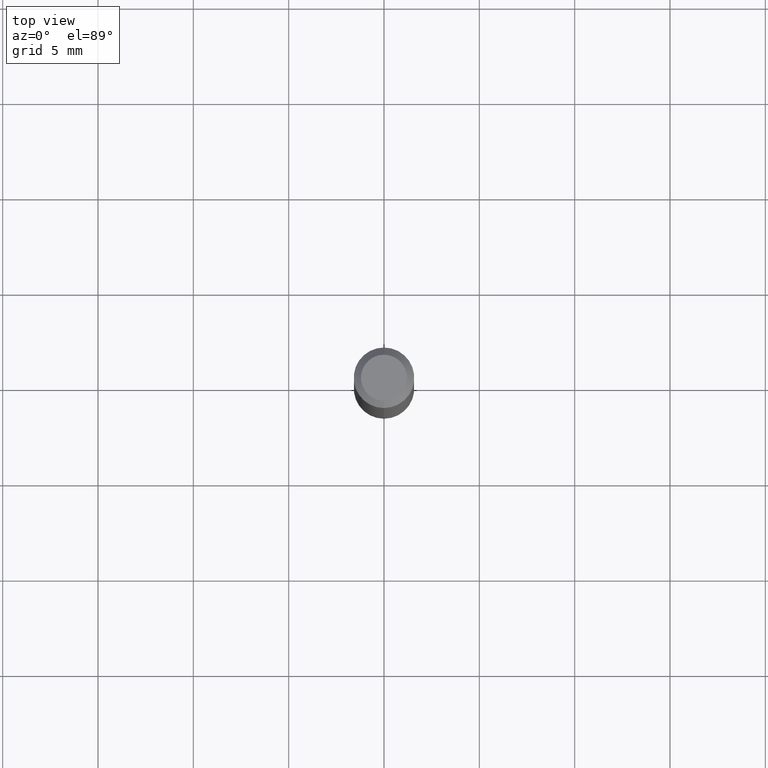
[diagram: clean part render]
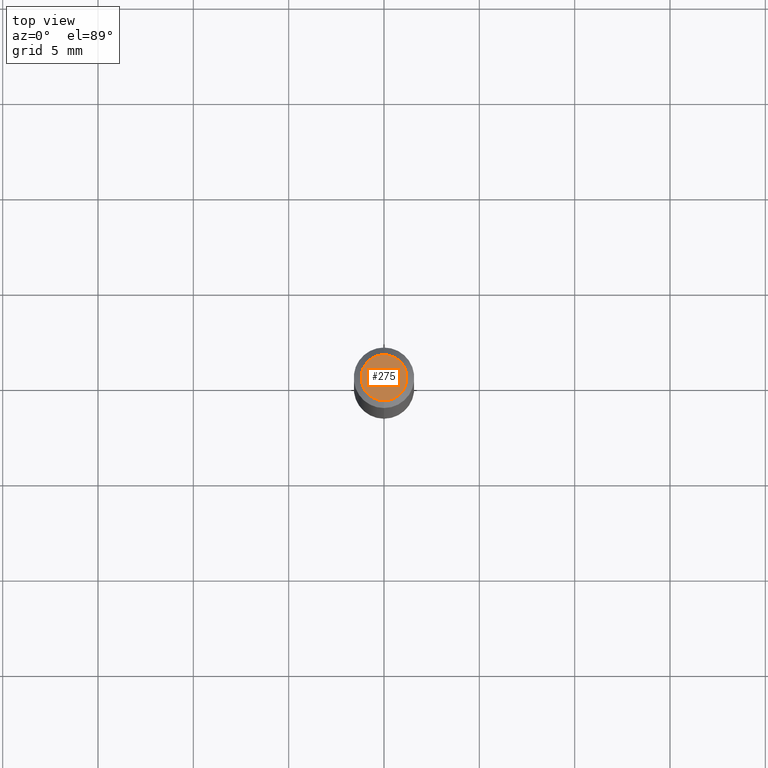
[diagram: same view with one face highlighted and labeled with its STEP entity id]
A machine part, top view. The second image highlights one B-rep face of the part: STEP entity #275.
In plain terms, the highlighted planar face has unit normal (0, -0, -1).
Its self-contained STEP definition (entity closure, byte-faithful):
#9 = EDGE_CURVE ( 'NONE', #283, #173, #240, .T. ) ;
#33 = PLANE ( 'NONE',  #477 ) ;
#49 = DIRECTION ( 'NONE',  ( -6.982962677686266711E-15, -1.000000000000000000, 3.491490567174196263E-15 ) ) ;
#91 = CARTESIAN_POINT ( 'NONE',  ( 8.024699379022379345E-45, -1.145720442104045864E-30, -3.281465093664347996E-16 ) ) ;
#114 = FACE_OUTER_BOUND ( 'NONE', #332, .T. ) ;
#151 = DIRECTION ( 'NONE',  ( 2.445462362076005572E-29, -3.491490567174196658E-15, -1.000000000000000000 ) ) ;
#173 = VERTEX_POINT ( 'NONE', #430 ) ;
#182 = DIRECTION ( 'NONE',  ( -6.982962677686266711E-15, -1.000000000000000000, 3.491490567174196263E-15 ) ) ;
#195 = DIRECTION ( 'NONE',  ( -2.445462362076006413E-29, 3.491490567174196263E-15, 1.000000000000000000 ) ) ;
#238 = AXIS2_PLACEMENT_3D ( 'NONE', #263, #497, #182 ) ;
#240 = CIRCLE ( 'NONE', #301, 0.04749999999999999362 ) ;
#263 = CARTESIAN_POINT ( 'NONE',  ( 8.024699379022379345E-45, -1.145720442104045864E-30, -3.281465093664347996E-16 ) ) ;
#275 = ADVANCED_FACE ( 'NONE', ( #114 ), #33, .F. ) ;
#283 = VERTEX_POINT ( 'NONE', #352 ) ;
#285 = DIRECTION ( 'NONE',  ( 6.982962677686265922E-15, 1.000000000000000000, -3.491490567174196658E-15 ) ) ;
#292 = ORIENTED_EDGE ( 'NONE', *, *, #9, .T. ) ;
#301 = AXIS2_PLACEMENT_3D ( 'NONE', #91, #195, #49 ) ;
#328 = ORIENTED_EDGE ( 'NONE', *, *, #440, .T. ) ;
#332 = EDGE_LOOP ( 'NONE', ( #328, #292 ) ) ;
#352 = CARTESIAN_POINT ( 'NONE',  ( -3.773273898774340269E-16, -0.04749999999999999362, -1.623007074256604751E-16 ) ) ;
#389 = CARTESIAN_POINT ( 'NONE',  ( 3.316907271900976096E-16, 0.04749999999999999362, -3.299190566239917243E-16 ) ) ;
#430 = CARTESIAN_POINT ( 'NONE',  ( 3.840629472727447874E-16, 0.04749999999999999362, -4.939923113072091241E-16 ) ) ;
#440 = EDGE_CURVE ( 'NONE', #173, #283, #479, .T. ) ;
#477 = AXIS2_PLACEMENT_3D ( 'NONE', #389, #151, #285 ) ;
#479 = CIRCLE ( 'NONE', #238, 0.04749999999999999362 ) ;
#497 = DIRECTION ( 'NONE',  ( -2.445462362076006413E-29, 3.491490567174196263E-15, 1.000000000000000000 ) ) ;